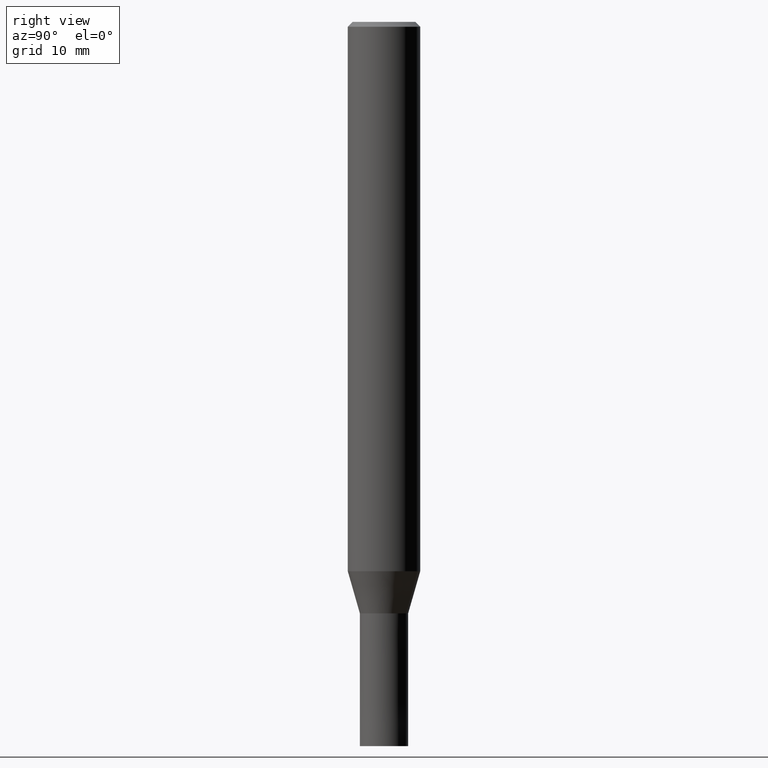
[diagram: clean part render]
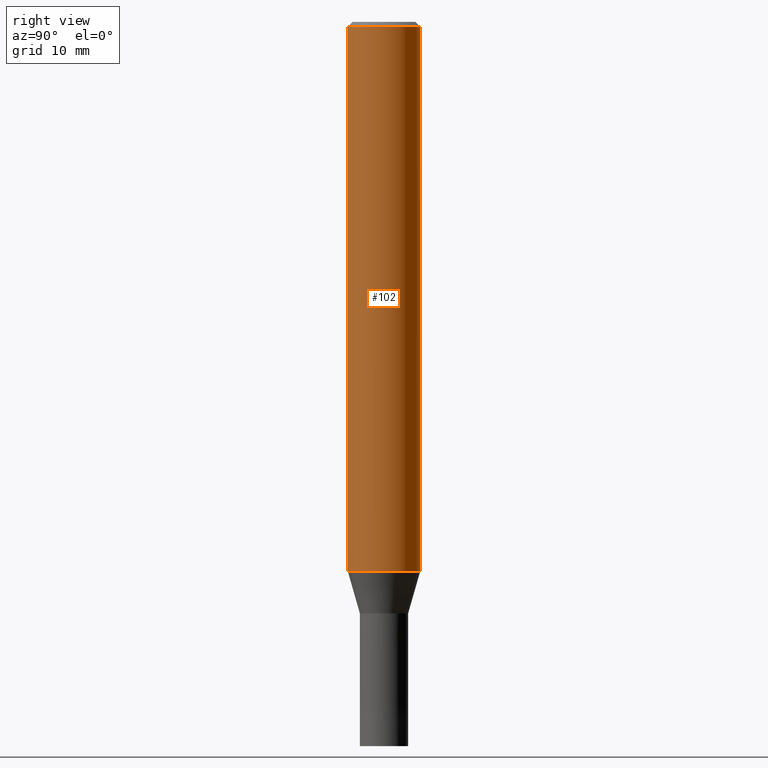
[diagram: same view with one face highlighted and labeled with its STEP entity id]
A machine part, right view. The second image highlights one B-rep face of the part: STEP entity #102.
In plain terms, the highlighted cylindrical surface (edge-blend (fillet) strip) has radius 3 mm, axis along (-0, -0, 1).
Its self-contained STEP definition (entity closure, byte-faithful):
#102=ADVANCED_FACE('',(#226),#227,.T.);
#116=EDGE_CURVE('',#138,#152,#244,.T.);
#122=VERTEX_POINT('',#250);
#126=EDGE_CURVE('',#122,#138,#254,.T.);
#132=EDGE_CURVE('',#162,#122,#261,.T.);
#138=VERTEX_POINT('',#267);
#152=VERTEX_POINT('',#282);
#162=VERTEX_POINT('',#292);
#166=EDGE_CURVE('',#162,#152,#297,.T.);
#226=FACE_OUTER_BOUND('',#360,.T.);
#227=CYLINDRICAL_SURFACE('',#361,3.0);
#244=LINE('',#380,#381);
#250=CARTESIAN_POINT('',(0.0,3.0,-45.513));
#254=CIRCLE('',#394,3.0);
#261=LINE('',#403,#404);
#267=CARTESIAN_POINT('',(3.67381906146713E-016,-3.0,-45.513));
#282=CARTESIAN_POINT('',(3.67381906146713E-016,-3.0,-0.399999999999999));
#292=CARTESIAN_POINT('',(0.0,3.0,-0.399999999999999));
#297=CIRCLE('',#447,3.0);
#360=EDGE_LOOP('',(#507,#508,#509,#510));
#361=AXIS2_PLACEMENT_3D('',#511,#512,#513);
#380=CARTESIAN_POINT('',(3.67381906146713E-016,-3.0,-22.9565));
#381=VECTOR('',#537,1.0);
#394=AXIS2_PLACEMENT_3D('',#544,#545,#546);
#403=CARTESIAN_POINT('',(-3.67381906146713E-016,3.0,-22.9565));
#404=VECTOR('',#558,1.0);
#447=AXIS2_PLACEMENT_3D('',#583,#584,#585);
#507=ORIENTED_EDGE('',*,*,#132,.F.);
#508=ORIENTED_EDGE('',*,*,#166,.T.);
#509=ORIENTED_EDGE('',*,*,#116,.F.);
#510=ORIENTED_EDGE('',*,*,#126,.F.);
#511=CARTESIAN_POINT('',(0.0,0.0,-22.9565));
#512=DIRECTION('',(-0.0,-0.0,1.0));
#513=DIRECTION('',(0.0,1.0,0.0));
#537=DIRECTION('',(-0.0,-0.0,1.0));
#544=CARTESIAN_POINT('',(0.0,0.0,-45.513));
#545=DIRECTION('',(0.0,0.0,-1.0));
#546=DIRECTION('',(0.0,1.0,0.0));
#558=DIRECTION('',(0.0,0.0,-1.0));
#583=CARTESIAN_POINT('',(0.0,0.0,-0.399999999999999));
#584=DIRECTION('',(0.0,0.0,-1.0));
#585=DIRECTION('',(0.0,1.0,0.0));